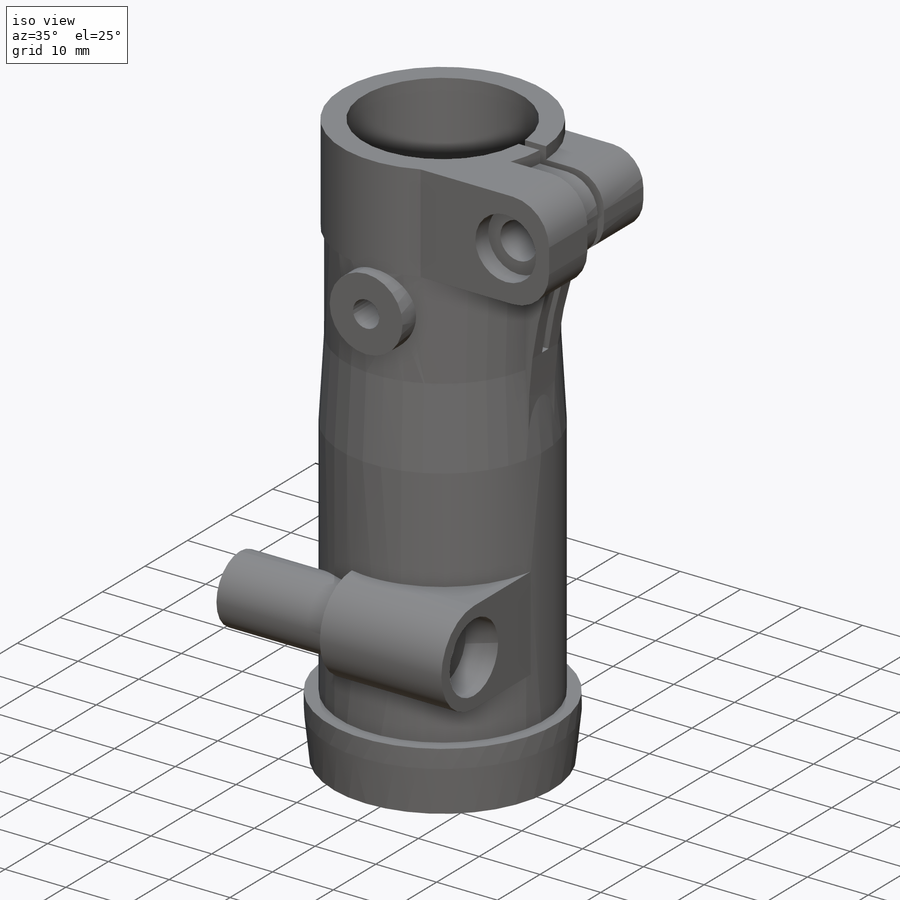
[diagram: iso view]
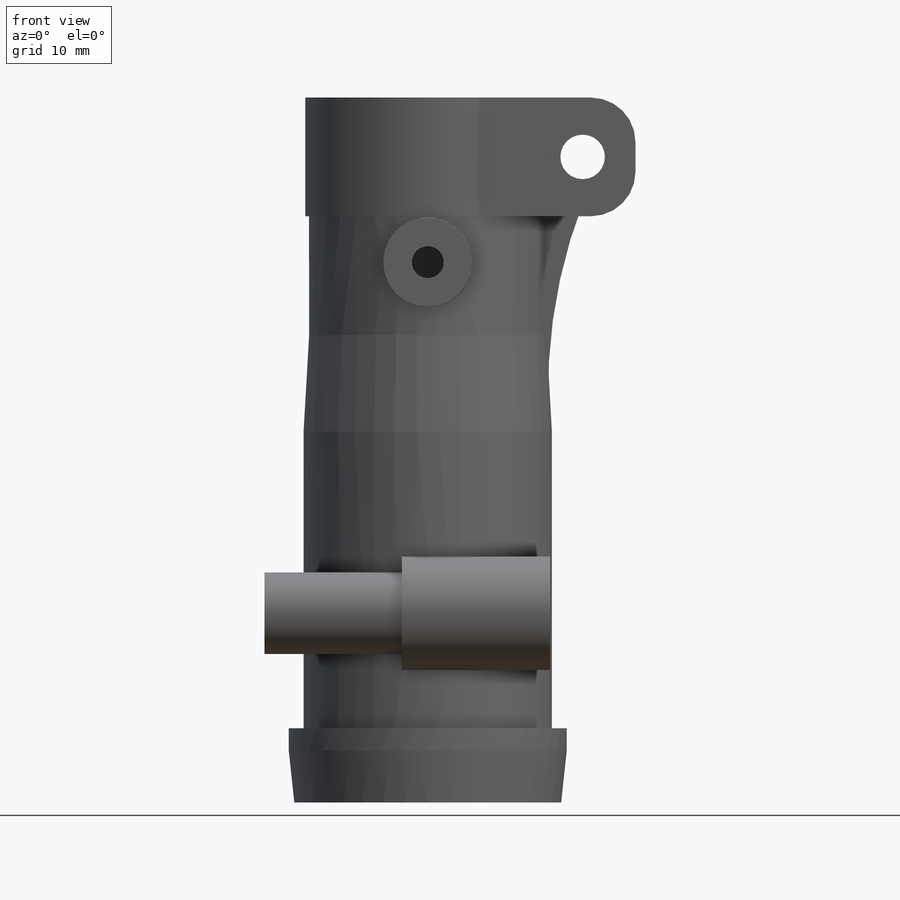
[diagram: front view]
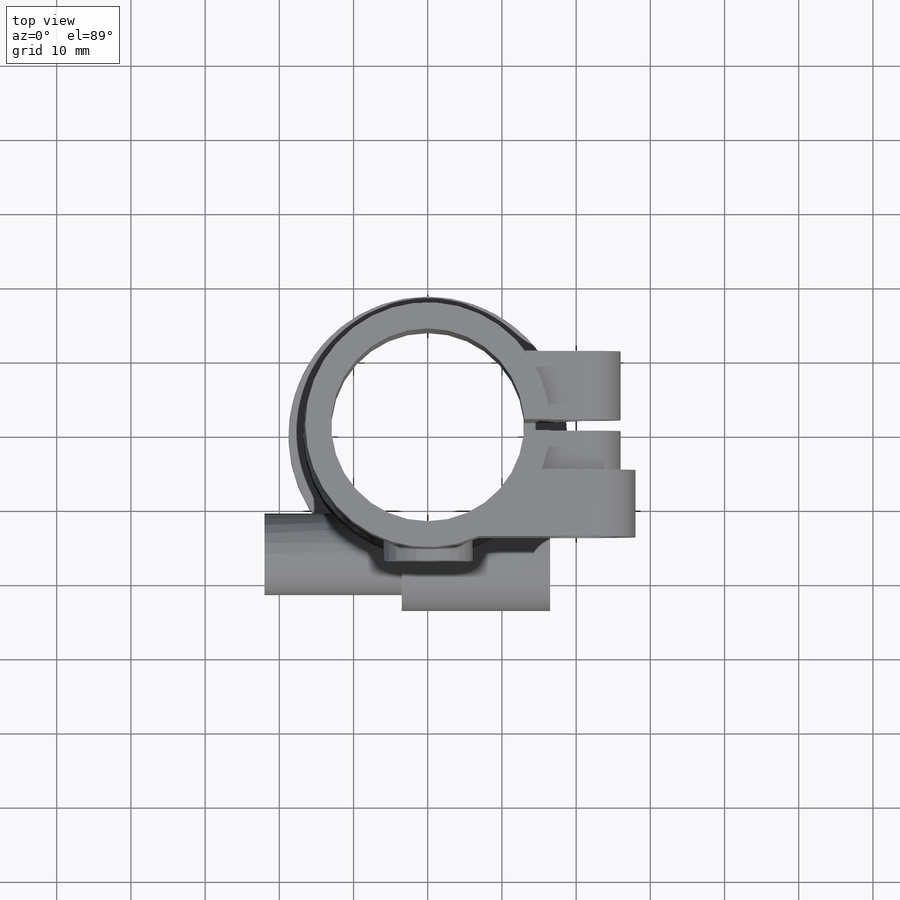
[diagram: top view]
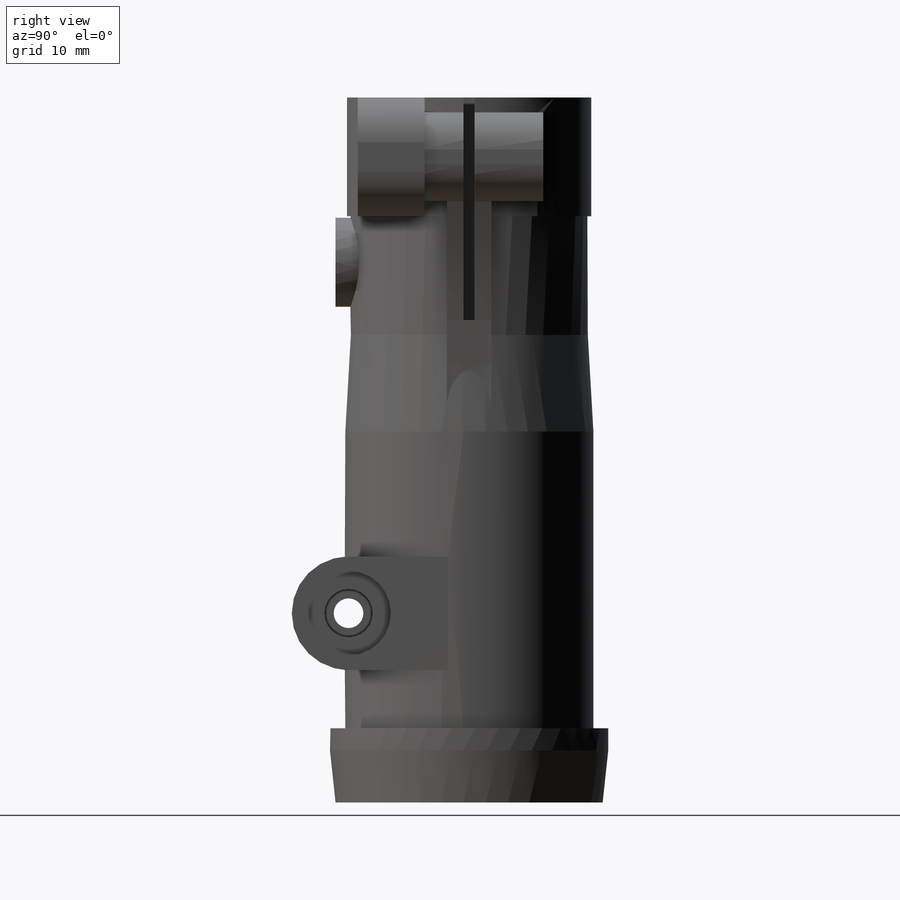
[diagram: right view]
SOLIDWORKS PART (.sldprt)
format: sldprt  version: not decoded by parser v0  size: 480,256 bytes
history: native  units: mm
features: sketch x16, cut_extrude x8, plane x7, extrude x7, fillet x2, material x1, revolve x1 (+10 scaffold rows collapsed)
feature tree (52):
  scaffold x10  (default folders/planes/origin — collapsed)
  material  "材质 <未指定>"
  plane  "前视基准面"
  plane  "上视基准面"
  plane  "右视基准面"
  sketch  "草图1"  dims[c1.D1=95.0mm c1.D2=37.5mm c1.D3=0.5mm c1.D4=33.0mm c1.D5=33.5mm c1.D6=29.0mm c1.D7=26.0mm c1.D8=18.0mm c1.D9=37.5mm c1.D10=10.0mm c1.D11=3.0mm c1.D12=16.0mm c1.D13=18.0mm c1.D14=40.0mm c1.D15=2.5mm c2.D13=16.0mm c2.D3=32.0mm]
  revolve  "旋转1"  Angle=360deg
  plane  "基准面1"  Offset=26mm
  sketch  "草图2"  dims[D1=12.0mm D2=10.0mm D3=6.0mm D4=2.0mm]
  extrude  "凸台-拉伸1"  [1 undecoded]
  fillet  "圆角1"  Radius=5mm
  plane  "基准面2"  Offset=2mm
  sketch  "草图3"  dims[D1=16.0mm D2=9.0mm]
  extrude  "凸台-拉伸2"  [1 undecoded]
  fillet  "圆角2"  Radius=6mm
  sketch  "草图4"  dims[D1=10.0mm D2=14.0mm]
  cut_extrude  "切除-拉伸1"  Depth=3mm
  sketch  "草图5"  dims[D1=6.0mm]
  cut_extrude  "切除-拉伸2"  [1 undecoded]
  sketch  "草图7"  dims[c1.D1=70.0mm c1.D3=70.0mm c1.D2=1.4mm c2.D3=0.3mm]
  extrude  "凸台-拉伸3"  Depth=3mm
  sketch  "草图6"  dims[D1=1.5mm D2=30.0mm]
  cut_extrude  "切除-拉伸3"  Depth=19mm
  sketch  "草图8"  dims[D1=15.3mm D2=25.5mm D3=0.5mm]
  extrude  "凸台-拉伸4"  Depth=16.5mm
  plane  "基准面3"
  sketch  "草图9"
  extrude  "凸台-拉伸5"  [1 undecoded]
  sketch  "草图10"  dims[D1=11.0mm]
  extrude  "凸台-拉伸6"  Depth=18.5mm
  sketch  "草图11"  dims[D1=4.0mm]
  cut_extrude  "切除-拉伸4"  [1 undecoded]
  sketch  "草图12"
  cut_extrude  "切除-拉伸5"  Depth=40.5mm
  sketch  "草图13"  dims[D1=11.4mm]
  cut_extrude  "切除-拉伸6"  Depth=5.3mm
  sketch  "草图14"  dims[D1=6.5mm]
  cut_extrude  "切除-拉伸7"  Depth=18.3mm
  plane  "基准面4"  Offset=18mm
  sketch  "草图16"  dims[D1=12.0mm D2=6.2mm]
  extrude  "凸台-拉伸11"  [1 undecoded]
  sketch  "草图17"  dims[D1=4.3mm]
  cut_extrude  "切除-拉伸8"  [1 undecoded]
decode coverage: 25 of 34 modeling features carry decoded parameters
note: 7 parameter values undecoded
summary: no parameter record found for 7 features
note: suppression state not decoded; provenance and decode notes live in map.json
